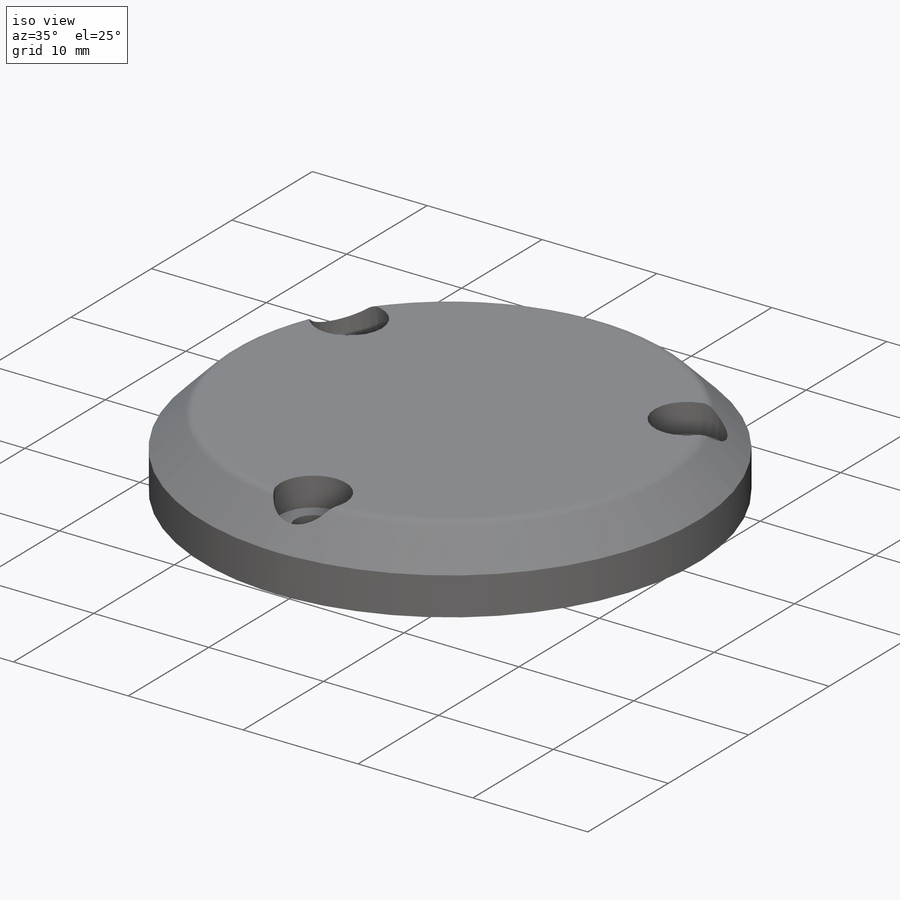
[diagram: iso view]
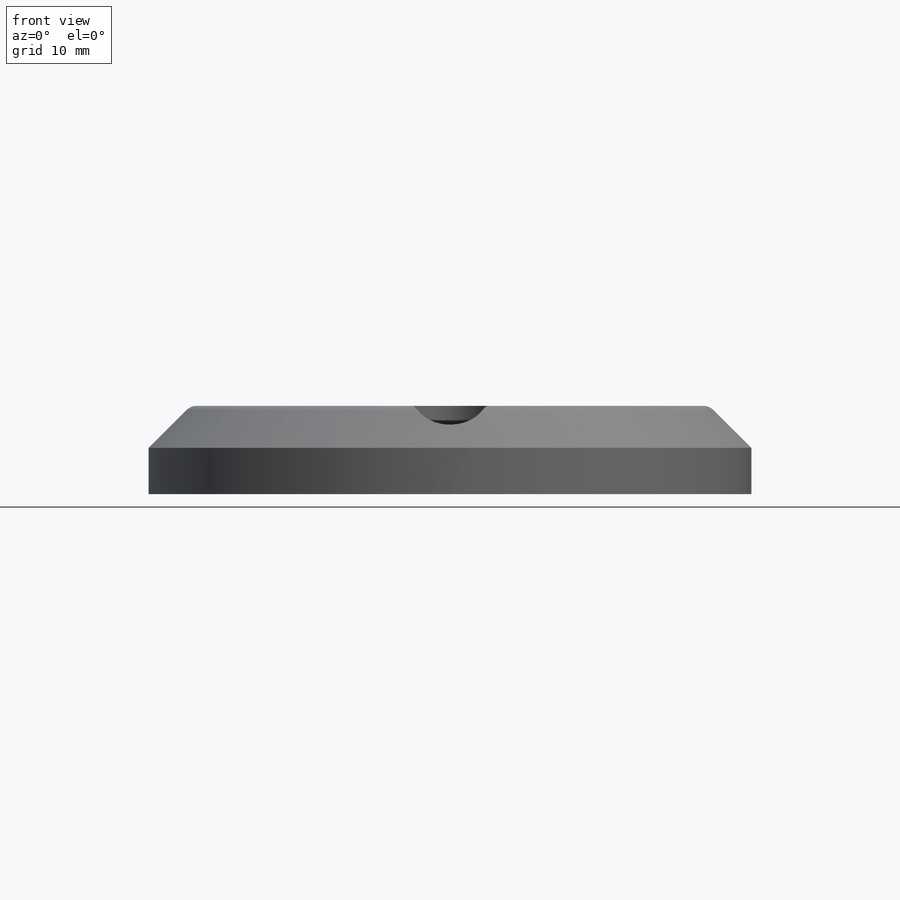
[diagram: front view]
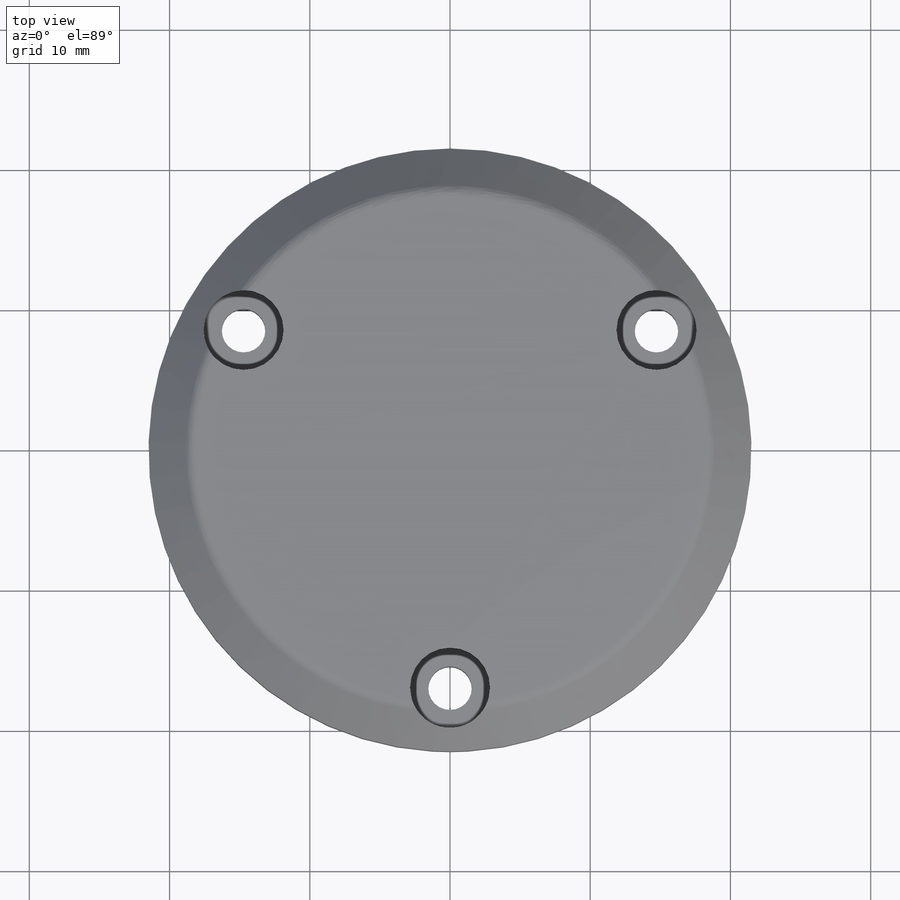
[diagram: top view]
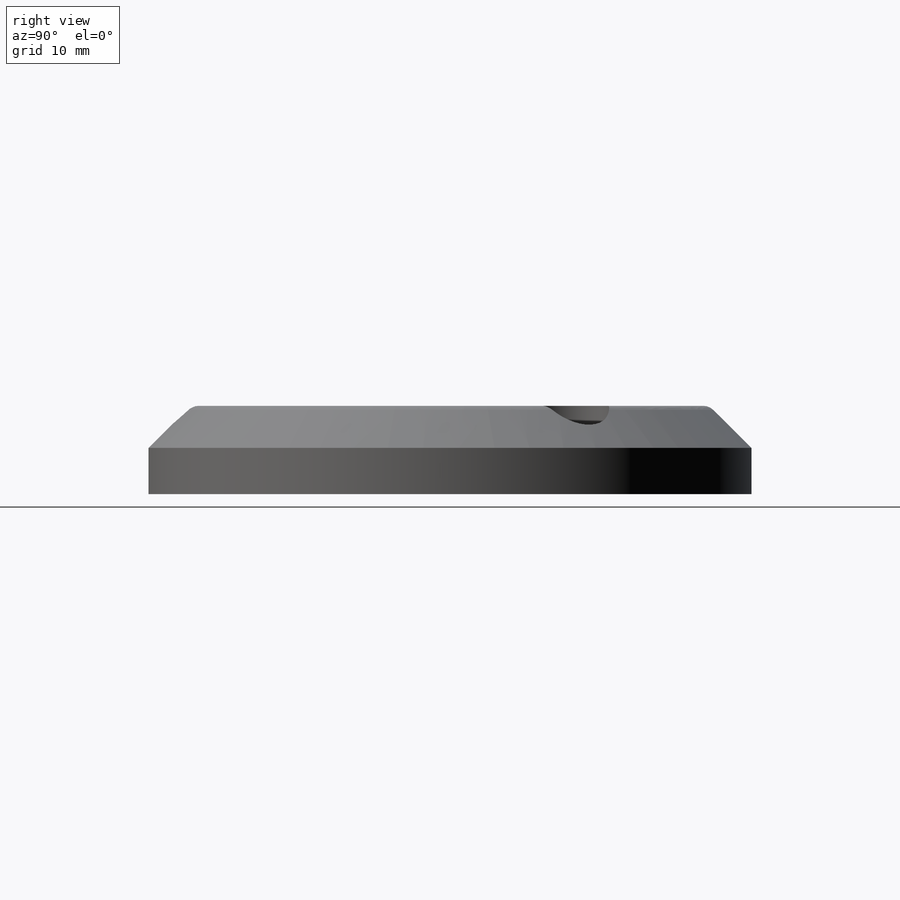
[diagram: right view]
SOLIDWORKS PART (.sldprt)
format: sldprt  version: not decoded by parser v0  size: 200,192 bytes
history: native  units: mm
features: sketch x5, plane x4, material x1, extrude x1, cut_extrude x1, chamfer x1, fillet x1 (+9 scaffold rows collapsed)
feature tree (23):
  scaffold x9  (default folders/planes/origin — collapsed)
  material  "Material <sin especificar>"
  plane  "Alzado"
  plane  "Planta"
  plane  "Vista lateral"
  sketch  "Croquis1"  dims[c1.D1=43.0mm c1.D4=3.1mm c1.D2=45.0deg c1.D3=4.5mm c1.D5=4.5mm c2.D2=22.0mm c3.D2=120.0deg]
  extrude  "Saliente-Extruir1"  Depth=6.3mm
  sketch  "Croquis2"  dims[D1=5.7mm]
  cut_extrude  "Cortar-Extruir1"  Depth=2.5mm
  sketch  "Croquis3"  dims[D1=20.0mm]
  sketch  "Croquis4"
  plane  "Plano1"
  sketch  "Croquis5"  dims[c1.D1=150.0mm c1.D2=150.0mm c2.D1=360.0mm c2.D2=1.3mm c2.D3=45.0mm c2.D4=15.0mm c2.D5=1.5mm]
  chamfer  "Chaflán1"  Distance=3mm Angle=45deg
  fillet  "Redondeo1"  Radius=1mm
decode coverage: 8 of 9 modeling features carry decoded parameters
note: suppression state not decoded; provenance and decode notes live in map.json
